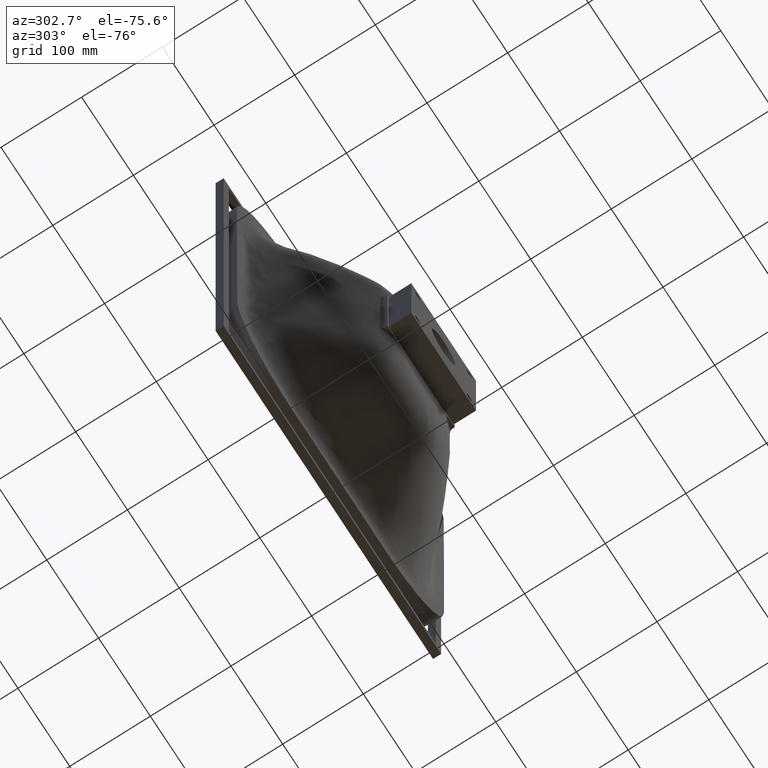
[diagram: clean part render]
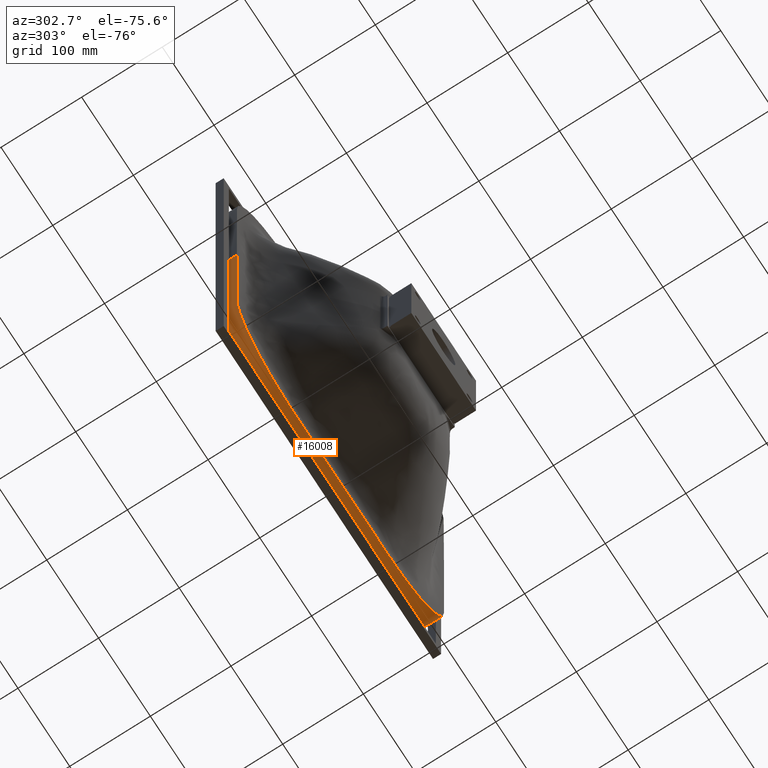
[diagram: same view with one face highlighted and labeled with its STEP entity id]
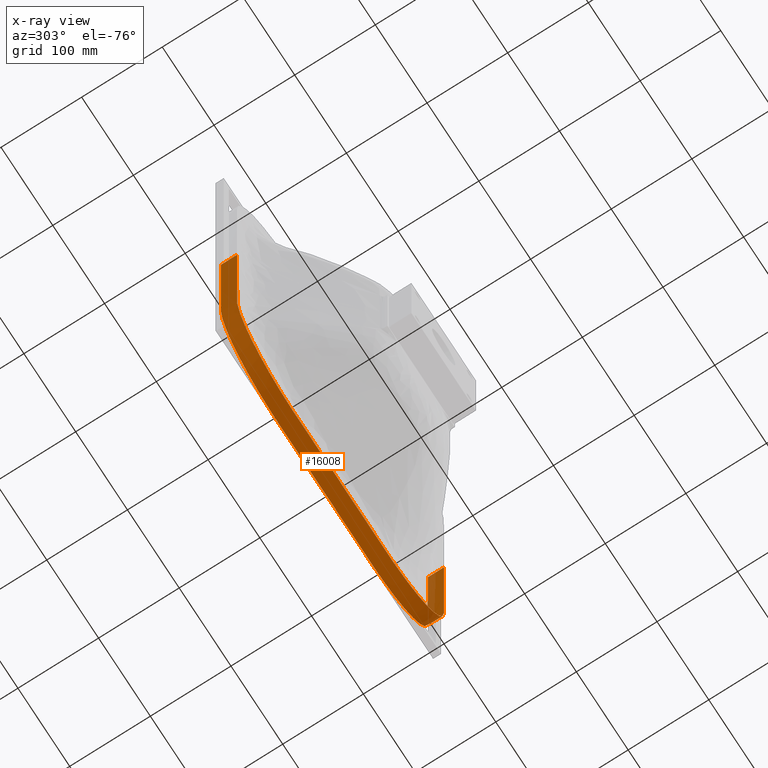
[diagram: x-ray of the same camera — body ghosted, the highlighted face saturated]
A machine part, auxiliary view. The second image highlights one B-rep face of the part: STEP entity #16008.
The next image is the same camera in x-ray: the body ghosted, the highlighted face saturated — about 3% of this face is hidden behind the body in this view.
In plain terms, the highlighted face is a freeform B-spline surface patch.
Its self-contained STEP definition (entity closure, byte-faithful):
#162 = FACE_OUTER_BOUND ( 'NONE', #3801, .T. ) ;
#210 = CARTESIAN_POINT ( 'NONE',  ( -168.6923294650226200, 106.6666666666666700, 268.6923294650225100 ) ) ;
#236 = CARTESIAN_POINT ( 'NONE',  ( -9.179578393710605000E-014, 106.6666666666666400, 300.0000000000000600 ) ) ;
#270 = CARTESIAN_POINT ( 'NONE',  ( -22.24110135107356700, 106.6666666666666700, 300.0000000000001100 ) ) ;
#316 = CARTESIAN_POINT ( 'NONE',  ( 76.98436227798839600, 120.0000000000000000, -299.9999999999999400 ) ) ;
#332 = EDGE_CURVE ( 'NONE', #11120, #3936, #3323, .T. ) ;
#521 = ORIENTED_EDGE ( 'NONE', *, *, #17592, .F. ) ;
#590 = CARTESIAN_POINT ( 'NONE',  ( 198.8080864718465100, 120.0000000000000100, -208.5657858098239800 ) ) ;
#598 = CARTESIAN_POINT ( 'NONE',  ( -200.0000000000000600, 120.0000000000000000, -2.168404344971008900E-015 ) ) ;
#981 = CARTESIAN_POINT ( 'NONE',  ( -186.6589759895212000, 120.0000000000000600, -245.1906514458042100 ) ) ;
#984 = CARTESIAN_POINT ( 'NONE',  ( -200.0000000000000600, 120.0000000000000000, 3.166666666666653600 ) ) ;
#1179 = CARTESIAN_POINT ( 'NONE',  ( -121.1660790566503000, 100.0000000000000000, -296.8106721460860100 ) ) ;
#1189 = CARTESIAN_POINT ( 'NONE',  ( 83.49218113899503600, 120.0000000000000000, 299.9999999999999400 ) ) ;
#1633 = CARTESIAN_POINT ( 'NONE',  ( 65.93767346658849200, 106.6666666666665600, -299.9999999999999400 ) ) ;
#1654 = CARTESIAN_POINT ( 'NONE',  ( 121.1660790566504200, 113.3333333333333000, -296.8106721460858400 ) ) ;
#1661 = CARTESIAN_POINT ( 'NONE',  ( -22.24110135107363500, 113.3333333333333600, -300.0000000000000600 ) ) ;
#1692 = CARTESIAN_POINT ( 'NONE',  ( 147.3414267532380100, 113.3333333333333000, -285.0147497671382600 ) ) ;
#1717 = CARTESIAN_POINT ( 'NONE',  ( 102.0471619301133300, 113.3333333333333000, -300.0000000000002300 ) ) ;
#1723 = CARTESIAN_POINT ( 'NONE',  ( 168.6923294650226200, 113.3333333333332900, -268.6923294650224500 ) ) ;
#1985 = CARTESIAN_POINT ( 'NONE',  ( 76.98436227798839600, 99.99999999999998600, -299.9999999999999400 ) ) ;
#1999 = CARTESIAN_POINT ( 'NONE',  ( 83.49218113899425500, 99.99999999999998600, -300.0000000000000000 ) ) ;
#2480 = CARTESIAN_POINT ( 'NONE',  ( 59.12631834089928900, 99.99999999999994300, -299.9999999999999400 ) ) ;
#2515 = CARTESIAN_POINT ( 'NONE',  ( 147.3414267532380100, 100.0000000000000000, -285.0147497671382600 ) ) ;
#2532 = CARTESIAN_POINT ( 'NONE',  ( -168.6923294650226000, 99.99999999999997200, -268.6923294650223400 ) ) ;
#2644 = CARTESIAN_POINT ( 'NONE',  ( 102.0471619301133300, 120.0000000000000000, -300.0000000000002300 ) ) ;
#2738 = CARTESIAN_POINT ( 'NONE',  ( -147.3414267532379300, 100.0000000000000000, -285.0147497671384300 ) ) ;
#2755 = CARTESIAN_POINT ( 'NONE',  ( -52.31496321521039800, 99.99999999999998600, -300.0000000000000600 ) ) ;
#2805 = CARTESIAN_POINT ( 'NONE',  ( 22.24110135107326500, 99.99999999999997200, -299.9999999999999400 ) ) ;
#2826 = CARTESIAN_POINT ( 'NONE',  ( -1.700029006457271000E-013, 99.99999999999995700, -300.0000000000000600 ) ) ;
#2843 = CARTESIAN_POINT ( 'NONE',  ( -22.24110135107363800, 99.99999999999997200, -300.0000000000000600 ) ) ;
#3172 = CARTESIAN_POINT ( 'NONE',  ( -38.92192736437874600, 100.0000000000000300, -300.0000000000000600 ) ) ;
#3323 = B_SPLINE_CURVE_WITH_KNOTS ( 'NONE', 3,
 ( #4051, #10325, #15819, #6965, #590, #14511, #12241, #11017, #18337, #17442, #2644, #11802, #316, #17510, #9609, #16255, #4629, #8671, #4473, #4292, #15934, #17556, #17732, #5305, #17771, #6820, #18112, #11322, #17932, #12227, #981, #15091, #4890, #7113, #7938, #10194, #17306, #16482, #14984, #3982, #15811 ),
 .UNSPECIFIED., .F., .F.,
 ( 4, 2, 2, 1, 1, 1, 1, 2, 2, 1, 2, 1, 1, 1, 2, 1, 2, 2, 1, 1, 1, 1, 2, 2, 1, 1, 1, 1, 4 ),
 ( 0.5000000000000013300, 0.6043869025565782300, 0.6197851551098251300, 0.6364424591954523900, 0.6524702375148895300, 0.6684980158343266600, 0.6806972684971689400, 0.7005535724732009400, 0.7112798522621431900, 0.7187608823973340400, 0.7225064248481993800, 0.7408354749494002700, 0.7500000000000006700, 0.7591645250506013900, 0.7774935751518024000, 0.7812391176026671800, 0.7887201477378598100, 0.7994464275268004000, 0.8193027315028322800, 0.8315019841656745600, 0.8475297624851116900, 0.8635575408045488300, 0.8802148448901778700, 0.8956130974434231000, 0.9791226194886846200, 0.9843419646165134700, 0.9895613097443423100, 0.9947806548721711600, 1.000000000000000000 ),
 .UNSPECIFIED. ) ;
#3452 = CARTESIAN_POINT ( 'NONE',  ( -186.6589759895212000, 99.99999999999994300, -245.1906514458042100 ) ) ;
#3801 = EDGE_LOOP ( 'NONE', ( #14987, #521, #13712, #11401 ) ) ;
#3867 = B_SPLINE_CURVE_WITH_KNOTS ( 'NONE', 3,
 ( #7453, #7399, #7395, #7376 ),
 .UNSPECIFIED., .F., .F.,
 ( 4, 4 ),
 ( 0.0000000000000000000, 1.000000000000000000 ),
 .UNSPECIFIED. ) ;
#3936 = VERTEX_POINT ( 'NONE', #18211 ) ;
#3982 = CARTESIAN_POINT ( 'NONE',  ( -200.0000000000000600, 120.0000000000000000, -3.166666666666658100 ) ) ;
#4051 = CARTESIAN_POINT ( 'NONE',  ( 200.0000000000021300, 120.0000000000007400, 9.159339953157541500E-013 ) ) ;
#4193 = CARTESIAN_POINT ( 'NONE',  ( 52.31496321521019200, 120.0000000000000000, 300.0000000000000600 ) ) ;
#4210 = CARTESIAN_POINT ( 'NONE',  ( 59.12631834090001300, 119.9999999999999900, 300.0000000000000600 ) ) ;
#4254 = CARTESIAN_POINT ( 'NONE',  ( 168.6923294650225400, 119.9999999999999600, 268.6923294650225700 ) ) ;
#4292 = CARTESIAN_POINT ( 'NONE',  ( -22.24110135107363800, 120.0000000000000600, -300.0000000000000600 ) ) ;
#4319 = CARTESIAN_POINT ( 'NONE',  ( 38.92192736437854700, 119.9999999999999900, 300.0000000000000600 ) ) ;
#4333 = CARTESIAN_POINT ( 'NONE',  ( 194.0399032443960400, 120.0000000000000000, -227.0779828008025200 ) ) ;
#4380 = CARTESIAN_POINT ( 'NONE',  ( 186.6589759895207100, 120.0000000000000300, -245.1906514458049700 ) ) ;
#4451 = CARTESIAN_POINT ( 'NONE',  ( 199.9999999999998900, 120.0000000000001700, -199.3423852784316400 ) ) ;
#4473 = CARTESIAN_POINT ( 'NONE',  ( -1.700029006457271000E-013, 120.0000000000000000, -300.0000000000000600 ) ) ;
#4548 = CARTESIAN_POINT ( 'NONE',  ( 198.8080864718465100, 120.0000000000000100, -208.5657858098239800 ) ) ;
#4629 = CARTESIAN_POINT ( 'NONE',  ( 38.92192736437832700, 119.9999999999999700, -299.9999999999999400 ) ) ;
#4721 = CARTESIAN_POINT ( 'NONE',  ( 200.0000000000028400, 120.0000000000009900, 1.582067810090848100E-012 ) ) ;
#4754 = CARTESIAN_POINT ( 'NONE',  ( 200.0000000000014500, 119.9999999999987200, -126.6666666666664300 ) ) ;
#4785 = CARTESIAN_POINT ( 'NONE',  ( 199.9999999999999700, 119.9999999999996600, 199.3423852784301000 ) ) ;
#4793 = CARTESIAN_POINT ( 'NONE',  ( -83.49218113899517800, 100.0000000000000000, -300.0000000000000000 ) ) ;
#4885 = CARTESIAN_POINT ( 'NONE',  ( 200.0000000000015300, 120.0000000000022700, 126.6666666666678700 ) ) ;
#4890 = CARTESIAN_POINT ( 'NONE',  ( -198.8080864718467400, 120.0000000000000300, -208.5657858098221000 ) ) ;
#4916 = CARTESIAN_POINT ( 'NONE',  ( 194.0399032443970100, 120.0000000000000300, 227.0779828008003000 ) ) ;
#4937 = CARTESIAN_POINT ( 'NONE',  ( 198.8080864718468200, 119.9999999999999700, 208.5657858098214800 ) ) ;
#4942 = CARTESIAN_POINT ( 'NONE',  ( 65.93767346658849200, 99.99999999999997200, -299.9999999999999400 ) ) ;
#4951 = CARTESIAN_POINT ( 'NONE',  ( 121.1660790566504200, 120.0000000000000100, -296.8106721460858400 ) ) ;
#5002 = CARTESIAN_POINT ( 'NONE',  ( 186.6589759895216500, 120.0000000000000300, 245.1906514458040400 ) ) ;
#5011 = CARTESIAN_POINT ( 'NONE',  ( 168.6923294650226200, 120.0000000000000000, -268.6923294650224500 ) ) ;
#5054 = CARTESIAN_POINT ( 'NONE',  ( 147.3414267532380100, 120.0000000000000000, -285.0147497671382600 ) ) ;
#5112 = CARTESIAN_POINT ( 'NONE',  ( 83.49218113899425500, 120.0000000000000000, -300.0000000000000000 ) ) ;
#5121 = CARTESIAN_POINT ( 'NONE',  ( 76.98436227798839600, 120.0000000000000000, -299.9999999999999400 ) ) ;
#5178 = CARTESIAN_POINT ( 'NONE',  ( 65.93767346658977100, 120.0000000000000300, 300.0000000000000600 ) ) ;
#5305 = CARTESIAN_POINT ( 'NONE',  ( -65.93767346659031100, 120.0000000000000300, -300.0000000000000000 ) ) ;
#5322 = CARTESIAN_POINT ( 'NONE',  ( 38.92192736437832700, 99.99999999999997200, -299.9999999999999400 ) ) ;
#5455 = CARTESIAN_POINT ( 'NONE',  ( -102.0471619301131900, 120.0000000000000300, 300.0000000000000600 ) ) ;
#5463 = CARTESIAN_POINT ( 'NONE',  ( -83.49218113899517800, 100.0000000000000000, -300.0000000000000000 ) ) ;
#5472 = CARTESIAN_POINT ( 'NONE',  ( 22.24110135107341400, 119.9999999999999600, 300.0000000000000600 ) ) ;
#5484 = CARTESIAN_POINT ( 'NONE',  ( -102.0471619301131500, 99.99999999999998600, -300.0000000000001100 ) ) ;
#5526 = CARTESIAN_POINT ( 'NONE',  ( -194.0399032443967000, 99.99999999999998600, -227.0779828008007500 ) ) ;
#5545 = CARTESIAN_POINT ( 'NONE',  ( -121.1660790566503000, 100.0000000000000000, -296.8106721460860100 ) ) ;
#5571 = CARTESIAN_POINT ( 'NONE',  ( -59.12631834090034700, 99.99999999999994300, -300.0000000000000600 ) ) ;
#5621 = CARTESIAN_POINT ( 'NONE',  ( -102.0471619301131500, 99.99999999999998600, -300.0000000000001100 ) ) ;
#5718 = CARTESIAN_POINT ( 'NONE',  ( 121.1660790566502900, 120.0000000000000300, 296.8106721460861200 ) ) ;
#5734 = CARTESIAN_POINT ( 'NONE',  ( 147.3414267532379800, 120.0000000000000300, 285.0147497671384800 ) ) ;
#5786 = CARTESIAN_POINT ( 'NONE',  ( 102.0471619301133300, 120.0000000000000000, -300.0000000000002300 ) ) ;
#5806 = CARTESIAN_POINT ( 'NONE',  ( -52.31496321521045400, 120.0000000000000000, 300.0000000000001700 ) ) ;
#5818 = CARTESIAN_POINT ( 'NONE',  ( -76.98436227799030000, 99.99999999999994300, -299.9999999999998300 ) ) ;
#5842 = CARTESIAN_POINT ( 'NONE',  ( -65.93767346659031100, 99.99999999999998600, -300.0000000000000000 ) ) ;
#5859 = CARTESIAN_POINT ( 'NONE',  ( -38.92192736437865400, 120.0000000000000400, 300.0000000000002300 ) ) ;
#5874 = CARTESIAN_POINT ( 'NONE',  ( -59.12631834090007000, 120.0000000000000100, 300.0000000000002300 ) ) ;
#5951 = CARTESIAN_POINT ( 'NONE',  ( 199.9999999999998900, 99.99999999999987200, -199.3423852784316400 ) ) ;
#5991 = CARTESIAN_POINT ( 'NONE',  ( -76.98436227798954700, 120.0000000000000300, 300.0000000000000600 ) ) ;
#6009 = CARTESIAN_POINT ( 'NONE',  ( -65.93767346658972900, 120.0000000000000000, 300.0000000000000600 ) ) ;
#6170 = CARTESIAN_POINT ( 'NONE',  ( -22.24110135107354600, 120.0000000000000700, 300.0000000000001100 ) ) ;
#6200 = CARTESIAN_POINT ( 'NONE',  ( -6.808789643208967800E-014, 120.0000000000000000, 300.0000000000000600 ) ) ;
#6216 = CARTESIAN_POINT ( 'NONE',  ( -198.8080864718467400, 100.0000000000000000, -208.5657858098221000 ) ) ;
#6231 = CARTESIAN_POINT ( 'NONE',  ( 102.0471619301131200, 120.0000000000000000, 300.0000000000000600 ) ) ;
#6293 = CARTESIAN_POINT ( 'NONE',  ( 168.6923294650226200, 99.99999999999997200, -268.6923294650224500 ) ) ;
#6314 = CARTESIAN_POINT ( 'NONE',  ( -83.49218113899480900, 119.9999999999999900, 300.0000000000000600 ) ) ;
#6446 = CARTESIAN_POINT ( 'NONE',  ( 76.98436227798986000, 120.0000000000000100, 300.0000000000000600 ) ) ;
#6485 = CARTESIAN_POINT ( 'NONE',  ( -200.0000000000000300, 113.3333333333333000, 9.499999999999966200 ) ) ;
#6537 = CARTESIAN_POINT ( 'NONE',  ( -200.0000000000000600, 120.0000000000000000, -3.166666666666658100 ) ) ;
#6550 = CARTESIAN_POINT ( 'NONE',  ( -200.0000000000000000, 113.3333333333333000, 18.99999999999999600 ) ) ;
#6820 = CARTESIAN_POINT ( 'NONE',  ( -83.49218113899517800, 119.9999999999999900, -300.0000000000000000 ) ) ;
#6965 = CARTESIAN_POINT ( 'NONE',  ( 199.9999999999998900, 120.0000000000001700, -199.3423852784316400 ) ) ;
#7022 = CARTESIAN_POINT ( 'NONE',  ( -200.0000000000000900, 113.3333333333333300, -9.499999999999964500 ) ) ;
#7099 = CARTESIAN_POINT ( 'NONE',  ( -200.0000000000000600, 106.6666666666666400, -6.722053469410127500E-015 ) ) ;
#7113 = CARTESIAN_POINT ( 'NONE',  ( -200.0000000000001100, 119.9999999999999900, -199.3423852784306400 ) ) ;
#7124 = CARTESIAN_POINT ( 'NONE',  ( -186.6589759895212000, 113.3333333333333100, -245.1906514458042100 ) ) ;
#7159 = CARTESIAN_POINT ( 'NONE',  ( -199.9999999999998300, 106.6666666666666600, 85.50000000000009900 ) ) ;
#7188 = CARTESIAN_POINT ( 'NONE',  ( 168.6923294650225400, 113.3333333333332900, 268.6923294650226200 ) ) ;
#7196 = CARTESIAN_POINT ( 'NONE',  ( -200.0000000000000600, 120.0000000000000400, -9.499999999999969800 ) ) ;
#7228 = CARTESIAN_POINT ( 'NONE',  ( -200.0000000000000600, 106.6666666666666600, 199.3423852784305600 ) ) ;
#7247 = CARTESIAN_POINT ( 'NONE',  ( -186.6589759895213100, 106.6666666666667000, 245.1906514458041500 ) ) ;
#7271 = CARTESIAN_POINT ( 'NONE',  ( -200.0000000000000900, 113.3333333333333000, -3.166666666666652800 ) ) ;
#7305 = CARTESIAN_POINT ( 'NONE',  ( -199.9999999999998900, 106.6666666666666300, 139.3333333333334600 ) ) ;
#7306 = CARTESIAN_POINT ( 'NONE',  ( -168.6923294650226000, 119.9999999999999600, -268.6923294650223400 ) ) ;
#7318 = CARTESIAN_POINT ( 'NONE',  ( -200.0000000000000300, 113.3333333333333000, 3.166666666666658100 ) ) ;
#7343 = CARTESIAN_POINT ( 'NONE',  ( -200.0000000000000600, 106.6666666666666600, 3.166666666666648300 ) ) ;
#7365 = CARTESIAN_POINT ( 'NONE',  ( 121.1660790566502900, 113.3333333333333600, 296.8106721460861800 ) ) ;
#7366 = CARTESIAN_POINT ( 'NONE',  ( -200.0000000000000600, 113.3333333333333000, 2.385244779468109800E-015 ) ) ;
#7376 = CARTESIAN_POINT ( 'NONE',  ( 200.0000000000021300, 120.0000000000007400, 9.159339953157541500E-013 ) ) ;
#7390 = CARTESIAN_POINT ( 'NONE',  ( 102.0471619301131500, 113.3333333333333100, 300.0000000000001100 ) ) ;
#7395 = CARTESIAN_POINT ( 'NONE',  ( 200.0000000000021300, 113.3333333333341700, 9.228728892196613700E-013 ) ) ;
#7399 = CARTESIAN_POINT ( 'NONE',  ( 200.0000000000021600, 106.6666666666676100, 9.089951014118469200E-013 ) ) ;
#7407 = CARTESIAN_POINT ( 'NONE',  ( -198.8080864718466800, 106.6666666666666400, 208.5657858098219600 ) ) ;
#7423 = CARTESIAN_POINT ( 'NONE',  ( -194.0399032443968400, 106.6666666666666300, 227.0779828008008100 ) ) ;
#7424 = CARTESIAN_POINT ( 'NONE',  ( -200.0000000000001100, 120.0000000000001000, 139.3333333333332000 ) ) ;
#7453 = CARTESIAN_POINT ( 'NONE',  ( 200.0000000000021300, 100.0000000000010700, 9.159339953157541500E-013 ) ) ;
#7486 = CARTESIAN_POINT ( 'NONE',  ( 186.6589759895216500, 113.3333333333333600, 245.1906514458040600 ) ) ;
#7530 = CARTESIAN_POINT ( 'NONE',  ( 186.6589759895207100, 100.0000000000000900, -245.1906514458049700 ) ) ;
#7544 = CARTESIAN_POINT ( 'NONE',  ( -200.0000000000000600, 120.0000000000000000, -2.168404344971008900E-015 ) ) ;
#7549 = CARTESIAN_POINT ( 'NONE',  ( 168.6923294650225400, 106.6666666666666300, 268.6923294650225100 ) ) ;
#7625 = CARTESIAN_POINT ( 'NONE',  ( -200.0000000000000600, 113.3333333333333000, 2.385244779468109800E-015 ) ) ;
#7637 = CARTESIAN_POINT ( 'NONE',  ( -199.9999999999998900, 120.0000000000000900, 85.50000000000001400 ) ) ;
#7640 = CARTESIAN_POINT ( 'NONE',  ( -76.98436227799030000, 106.6666666666665700, -299.9999999999998300 ) ) ;
#7683 = CARTESIAN_POINT ( 'NONE',  ( -7.560503149465584700E-014, 113.3333333333333400, 300.0000000000000600 ) ) ;
#7794 = CARTESIAN_POINT ( 'NONE',  ( -121.1660790566503600, 119.9999999999999900, 296.8106721460860100 ) ) ;
#7804 = CARTESIAN_POINT ( 'NONE',  ( -200.0000000000000600, 120.0000000000001400, -85.49999999999987200 ) ) ;
#7831 = CARTESIAN_POINT ( 'NONE',  ( -200.0000000000000000, 106.6666666666666600, 18.99999999999999300 ) ) ;
#7849 = CARTESIAN_POINT ( 'NONE',  ( -200.0000000000000300, 106.6666666666666400, 9.499999999999957400 ) ) ;
#7859 = CARTESIAN_POINT ( 'NONE',  ( 200.0000000000021300, 120.0000000000007400, 9.159339953157541500E-013 ) ) ;
#7863 = CARTESIAN_POINT ( 'NONE',  ( -200.0000000000000000, 120.0000000000000400, 28.50000000000001100 ) ) ;
#7886 = CARTESIAN_POINT ( 'NONE',  ( 147.3414267532379800, 113.3333333333333400, 285.0147497671385400 ) ) ;
#7887 = CARTESIAN_POINT ( 'NONE',  ( 52.31496321521012800, 106.6666666666665700, -299.9999999999999400 ) ) ;
#7908 = CARTESIAN_POINT ( 'NONE',  ( -199.9999999999998600, 113.3333333333333300, 85.50000000000005700 ) ) ;
#7914 = CARTESIAN_POINT ( 'NONE',  ( -83.49218113899517800, 106.6666666666666100, -300.0000000000000000 ) ) ;
#7938 = CARTESIAN_POINT ( 'NONE',  ( -200.0000000000001400, 120.0000000000000900, -139.3333333333331400 ) ) ;
#7959 = CARTESIAN_POINT ( 'NONE',  ( -200.0000000000000300, 120.0000000000000700, -28.49999999999990100 ) ) ;
#7963 = CARTESIAN_POINT ( 'NONE',  ( 199.9999999999999400, 113.3333333333330400, 199.3423852784301300 ) ) ;
#7993 = CARTESIAN_POINT ( 'NONE',  ( 200.0000000000015300, 113.3333333333350600, 126.6666666666678900 ) ) ;
#7998 = CARTESIAN_POINT ( 'NONE',  ( -59.12631834090035500, 106.6666666666665600, -300.0000000000000600 ) ) ;
#8014 = CARTESIAN_POINT ( 'NONE',  ( -121.1660790566503000, 106.6666666666666100, -296.8106721460860100 ) ) ;
#8015 = CARTESIAN_POINT ( 'NONE',  ( -200.0000000000001400, 120.0000000000000900, -139.3333333333331400 ) ) ;
#8047 = CARTESIAN_POINT ( 'NONE',  ( 198.8080864718468200, 113.3333333333332900, 208.5657858098215300 ) ) ;
#8052 = CARTESIAN_POINT ( 'NONE',  ( -52.31496321521040500, 106.6666666666666100, -300.0000000000000600 ) ) ;
#8073 = CARTESIAN_POINT ( 'NONE',  ( 194.0399032443970100, 113.3333333333333000, 227.0779828008003600 ) ) ;
#8080 = CARTESIAN_POINT ( 'NONE',  ( -200.0000000000000300, 120.0000000000000400, -18.99999999999993600 ) ) ;
#8102 = CARTESIAN_POINT ( 'NONE',  ( -38.92192736437875300, 106.6666666666666400, -300.0000000000000600 ) ) ;
#8125 = CARTESIAN_POINT ( 'NONE',  ( 200.0000000000028100, 113.3333333333344500, 1.593632633264026900E-012 ) ) ;
#8130 = CARTESIAN_POINT ( 'NONE',  ( 194.0399032443960400, 113.3333333333333000, -227.0779828008025200 ) ) ;
#8166 = CARTESIAN_POINT ( 'NONE',  ( 102.0471619301133300, 106.6666666666666000, -300.0000000000002300 ) ) ;
#8187 = CARTESIAN_POINT ( 'NONE',  ( 200.0000000000014500, 113.3333333333326700, -126.6666666666664300 ) ) ;
#8188 = CARTESIAN_POINT ( 'NONE',  ( -200.0000000000002600, 99.99999999999997200, -28.49999999999989300 ) ) ;
#8225 = CARTESIAN_POINT ( 'NONE',  ( 121.1660790566504200, 106.6666666666665900, -296.8106721460858400 ) ) ;
#8274 = CARTESIAN_POINT ( 'NONE',  ( 199.9999999999998900, 113.3333333333333900, -199.3423852784316400 ) ) ;
#8291 = CARTESIAN_POINT ( 'NONE',  ( 147.3414267532380100, 106.6666666666666100, -285.0147497671382600 ) ) ;
#8313 = CARTESIAN_POINT ( 'NONE',  ( 194.0399032443970100, 106.6666666666666100, 227.0779828008002400 ) ) ;
#8321 = CARTESIAN_POINT ( 'NONE',  ( 198.8080864718465100, 113.3333333333333100, -208.5657858098239800 ) ) ;
#8358 = CARTESIAN_POINT ( 'NONE',  ( 168.6923294650226200, 106.6666666666665900, -268.6923294650224500 ) ) ;
#8363 = CARTESIAN_POINT ( 'NONE',  ( -168.6923294650226000, 106.6666666666665900, -268.6923294650223400 ) ) ;
#8385 = CARTESIAN_POINT ( 'NONE',  ( 83.49218113899425500, 106.6666666666665900, -300.0000000000000000 ) ) ;
#8410 = CARTESIAN_POINT ( 'NONE',  ( -147.3414267532379300, 106.6666666666666100, -285.0147497671384300 ) ) ;
#8488 = CARTESIAN_POINT ( 'NONE',  ( 186.6589759895207100, 106.6666666666666900, -245.1906514458049700 ) ) ;
#8493 = CARTESIAN_POINT ( 'NONE',  ( 200.0000000000014500, 106.6666666666666700, -126.6666666666664300 ) ) ;
#8541 = CARTESIAN_POINT ( 'NONE',  ( 200.0000000000028700, 106.6666666666679400, 1.570502986917669600E-012 ) ) ;
#8580 = CARTESIAN_POINT ( 'NONE',  ( 194.0399032443960400, 106.6666666666665900, -227.0779828008025200 ) ) ;
#8585 = CARTESIAN_POINT ( 'NONE',  ( 200.0000000000015300, 106.6666666666678800, 126.6666666666678400 ) ) ;
#8629 = CARTESIAN_POINT ( 'NONE',  ( 198.8080864718465100, 106.6666666666666100, -208.5657858098239800 ) ) ;
#8652 = CARTESIAN_POINT ( 'NONE',  ( 199.9999999999998900, 106.6666666666665900, -199.3423852784316400 ) ) ;
#8655 = CARTESIAN_POINT ( 'NONE',  ( 200.0000000000000000, 106.6666666666664700, 199.3423852784300700 ) ) ;
#8671 = CARTESIAN_POINT ( 'NONE',  ( 22.24110135107326500, 119.9999999999999300, -299.9999999999999400 ) ) ;
#8682 = CARTESIAN_POINT ( 'NONE',  ( -194.0399032443967300, 106.6666666666666000, -227.0779828008007500 ) ) ;
#8701 = CARTESIAN_POINT ( 'NONE',  ( 38.92192736437832700, 106.6666666666665700, -299.9999999999999400 ) ) ;
#8718 = CARTESIAN_POINT ( 'NONE',  ( 83.49218113899503600, 106.6666666666666400, 299.9999999999998900 ) ) ;
#8726 = CARTESIAN_POINT ( 'NONE',  ( 186.6589759895216500, 106.6666666666666900, 245.1906514458040100 ) ) ;
#8766 = CARTESIAN_POINT ( 'NONE',  ( 147.3414267532379800, 106.6666666666666400, 285.0147497671384300 ) ) ;
#8795 = CARTESIAN_POINT ( 'NONE',  ( 65.93767346658977100, 106.6666666666666100, 300.0000000000000000 ) ) ;
#8821 = CARTESIAN_POINT ( 'NONE',  ( 76.98436227798986000, 106.6666666666666400, 300.0000000000000000 ) ) ;
#8841 = CARTESIAN_POINT ( 'NONE',  ( 102.0471619301131600, 106.6666666666665900, 300.0000000000000000 ) ) ;
#8856 = CARTESIAN_POINT ( 'NONE',  ( 121.1660790566503000, 106.6666666666666400, 296.8106721460860600 ) ) ;
#8857 = CARTESIAN_POINT ( 'NONE',  ( -1.700029006457271000E-013, 120.0000000000000000, -300.0000000000000600 ) ) ;
#8899 = VERTEX_POINT ( 'NONE', #12855 ) ;
#8925 = CARTESIAN_POINT ( 'NONE',  ( 38.92192736437854700, 106.6666666666666100, 300.0000000000000600 ) ) ;
#8943 = CARTESIAN_POINT ( 'NONE',  ( 194.0399032443960400, 99.99999999999995700, -227.0779828008025200 ) ) ;
#8984 = CARTESIAN_POINT ( 'NONE',  ( 22.24110135107340000, 106.6666666666666000, 300.0000000000000600 ) ) ;
#8985 = CARTESIAN_POINT ( 'NONE',  ( 22.24110135107341400, 113.3333333333333100, 300.0000000000000600 ) ) ;
#8989 = CARTESIAN_POINT ( 'NONE',  ( 52.31496321521019200, 106.6666666666666400, 300.0000000000000600 ) ) ;
#9046 = CARTESIAN_POINT ( 'NONE',  ( 198.8080864718468200, 106.6666666666666400, 208.5657858098214500 ) ) ;
#9050 = CARTESIAN_POINT ( 'NONE',  ( 59.12631834090001300, 106.6666666666666300, 300.0000000000000000 ) ) ;
#9146 = CARTESIAN_POINT ( 'NONE',  ( -1.700029006457271000E-013, 106.6666666666665700, -300.0000000000000600 ) ) ;
#9168 = CARTESIAN_POINT ( 'NONE',  ( -186.6589759895212000, 106.6666666666666000, -245.1906514458042100 ) ) ;
#9173 = CARTESIAN_POINT ( 'NONE',  ( 22.24110135107326500, 106.6666666666665600, -299.9999999999999400 ) ) ;
#9196 = CARTESIAN_POINT ( 'NONE',  ( -22.24110135107364200, 106.6666666666666000, -300.0000000000000600 ) ) ;
#9210 = CARTESIAN_POINT ( 'NONE',  ( -147.3414267532380700, 106.6666666666666600, 285.0147497671383100 ) ) ;
#9229 = CARTESIAN_POINT ( 'NONE',  ( -59.12631834090012700, 106.6666666666666700, 300.0000000000001700 ) ) ;
#9253 = CARTESIAN_POINT ( 'NONE',  ( -76.98436227798960400, 106.6666666666666600, 300.0000000000001100 ) ) ;
#9284 = CARTESIAN_POINT ( 'NONE',  ( -52.31496321521048300, 106.6666666666666600, 300.0000000000001100 ) ) ;
#9286 = CARTESIAN_POINT ( 'NONE',  ( -121.1660790566504000, 106.6666666666666400, 296.8106721460860600 ) ) ;
#9306 = CARTESIAN_POINT ( 'NONE',  ( -102.0471619301132600, 106.6666666666666400, 300.0000000000002800 ) ) ;
#9311 = CARTESIAN_POINT ( 'NONE',  ( -65.93767346658974300, 106.6666666666666400, 300.0000000000000000 ) ) ;
#9339 = CARTESIAN_POINT ( 'NONE',  ( -83.49218113899489400, 106.6666666666666300, 300.0000000000000000 ) ) ;
#9340 = CARTESIAN_POINT ( 'NONE',  ( -38.92192736437867500, 106.6666666666666400, 300.0000000000001700 ) ) ;
#9410 = CARTESIAN_POINT ( 'NONE',  ( 59.12631834089928900, 106.6666666666665400, -299.9999999999999400 ) ) ;
#9412 = CARTESIAN_POINT ( 'NONE',  ( -200.0000000000000000, 120.0000000000000000, 9.499999999999962700 ) ) ;
#9475 = CARTESIAN_POINT ( 'NONE',  ( -168.6923294650226200, 120.0000000000000400, 268.6923294650226200 ) ) ;
#9485 = CARTESIAN_POINT ( 'NONE',  ( 102.0471619301133300, 100.0000000000000000, -300.0000000000002300 ) ) ;
#9530 = CARTESIAN_POINT ( 'NONE',  ( -76.98436227799030000, 99.99999999999994300, -299.9999999999998300 ) ) ;
#9606 = CARTESIAN_POINT ( 'NONE',  ( -194.0399032443967500, 119.9999999999999900, 227.0779828008007500 ) ) ;
#9609 = CARTESIAN_POINT ( 'NONE',  ( 59.12631834089928900, 119.9999999999999900, -299.9999999999999400 ) ) ;
#9839 = CARTESIAN_POINT ( 'NONE',  ( -147.3414267532379500, 120.0000000000000000, 285.0147497671382600 ) ) ;
#9898 = CARTESIAN_POINT ( 'NONE',  ( -198.8080864718466500, 120.0000000000000000, 208.5657858098221600 ) ) ;
#10003 = CARTESIAN_POINT ( 'NONE',  ( -186.6589759895210800, 120.0000000000000000, 245.1906514458042100 ) ) ;
#10118 = CARTESIAN_POINT ( 'NONE',  ( -200.0000000000000000, 119.9999999999999900, 199.3423852784306700 ) ) ;
#10194 = CARTESIAN_POINT ( 'NONE',  ( -200.0000000000000600, 120.0000000000001400, -85.49999999999987200 ) ) ;
#10307 = CARTESIAN_POINT ( 'NONE',  ( -200.0000000000000600, 120.0000000000000000, -2.168404344971008900E-015 ) ) ;
#10325 = CARTESIAN_POINT ( 'NONE',  ( 200.0000000000021600, 119.9999999999998600, -63.33333333333417400 ) ) ;
#10544 = CARTESIAN_POINT ( 'NONE',  ( -200.0000000000000000, 120.0000000000000100, 18.99999999999998900 ) ) ;
#10575 = CARTESIAN_POINT ( 'NONE',  ( -199.9999999999999700, 113.3333333333333300, 28.50000000000002500 ) ) ;
#10612 = CARTESIAN_POINT ( 'NONE',  ( -194.0399032443967800, 113.3333333333333100, 227.0779828008007800 ) ) ;
#10655 = CARTESIAN_POINT ( 'NONE',  ( -200.0000000000000000, 113.3333333333333300, 139.3333333333333100 ) ) ;
#10663 = CARTESIAN_POINT ( 'NONE',  ( -147.3414267532379300, 100.0000000000000000, -285.0147497671384300 ) ) ;
#10834 = CARTESIAN_POINT ( 'NONE',  ( -200.0000000000000300, 113.3333333333333300, 199.3423852784306100 ) ) ;
#10867 = CARTESIAN_POINT ( 'NONE',  ( -168.6923294650226000, 99.99999999999997200, -268.6923294650223400 ) ) ;
#11017 = CARTESIAN_POINT ( 'NONE',  ( 168.6923294650226200, 120.0000000000000000, -268.6923294650224500 ) ) ;
#11120 = VERTEX_POINT ( 'NONE', #7859 ) ;
#11322 = CARTESIAN_POINT ( 'NONE',  ( -121.1660790566503000, 119.9999999999999700, -296.8106721460860100 ) ) ;
#11331 = EDGE_CURVE ( 'NONE', #11774, #11120, #3867, .T. ) ;
#11401 = ORIENTED_EDGE ( 'NONE', *, *, #332, .F. ) ;
#11764 = CARTESIAN_POINT ( 'NONE',  ( 121.1660790566504200, 99.99999999999995700, -296.8106721460858400 ) ) ;
#11774 = VERTEX_POINT ( 'NONE', #12982 ) ;
#11802 = CARTESIAN_POINT ( 'NONE',  ( 83.49218113899425500, 120.0000000000000000, -300.0000000000000000 ) ) ;
#11828 = CARTESIAN_POINT ( 'NONE',  ( 52.31496321521012800, 99.99999999999997200, -299.9999999999999400 ) ) ;
#11888 = CARTESIAN_POINT ( 'NONE',  ( -198.8080864718466800, 113.3333333333333100, 208.5657858098220700 ) ) ;
#12120 = CARTESIAN_POINT ( 'NONE',  ( 186.6589759895207100, 113.3333333333333600, -245.1906514458049700 ) ) ;
#12123 = CARTESIAN_POINT ( 'NONE',  ( 200.0000000000015300, 100.0000000000007200, 126.6666666666678700 ) ) ;
#12162 = CARTESIAN_POINT ( 'NONE',  ( 65.93767346658849200, 119.9999999999999700, -299.9999999999999400 ) ) ;
#12190 = CARTESIAN_POINT ( 'NONE',  ( 200.0000000000014500, 100.0000000000007000, -126.6666666666664300 ) ) ;
#12191 = CARTESIAN_POINT ( 'NONE',  ( 168.6923294650225400, 100.0000000000000000, 268.6923294650225700 ) ) ;
#12217 = CARTESIAN_POINT ( 'NONE',  ( 200.0000000000028400, 100.0000000000014200, 1.582067810090848100E-012 ) ) ;
#12227 = CARTESIAN_POINT ( 'NONE',  ( -168.6923294650226000, 119.9999999999999600, -268.6923294650223400 ) ) ;
#12241 = CARTESIAN_POINT ( 'NONE',  ( 186.6589759895207100, 120.0000000000000300, -245.1906514458049700 ) ) ;
#12248 = CARTESIAN_POINT ( 'NONE',  ( 198.8080864718468200, 99.99999999999998600, 208.5657858098214800 ) ) ;
#12249 = CARTESIAN_POINT ( 'NONE',  ( -22.24110135107363800, 99.99999999999997200, -300.0000000000000600 ) ) ;
#12269 = CARTESIAN_POINT ( 'NONE',  ( 186.6589759895207100, 100.0000000000000900, -245.1906514458049700 ) ) ;
#12273 = CARTESIAN_POINT ( 'NONE',  ( 147.3414267532379800, 100.0000000000000000, 285.0147497671384800 ) ) ;
#12289 = CARTESIAN_POINT ( 'NONE',  ( -186.6589759895212000, 99.99999999999994300, -245.1906514458042100 ) ) ;
#12305 = CARTESIAN_POINT ( 'NONE',  ( 194.0399032443960400, 99.99999999999995700, -227.0779828008025200 ) ) ;
#12306 = CARTESIAN_POINT ( 'NONE',  ( -1.700029006457271000E-013, 99.99999999999995700, -300.0000000000000600 ) ) ;
#12327 = CARTESIAN_POINT ( 'NONE',  ( 194.0399032443970100, 99.99999999999992900, 227.0779828008003000 ) ) ;
#12331 = CARTESIAN_POINT ( 'NONE',  ( -59.12631834090034700, 99.99999999999994300, -300.0000000000000600 ) ) ;
#12366 = CARTESIAN_POINT ( 'NONE',  ( 102.0471619301133300, 100.0000000000000000, -300.0000000000002300 ) ) ;
#12388 = CARTESIAN_POINT ( 'NONE',  ( 22.24110135107326500, 99.99999999999997200, -299.9999999999999400 ) ) ;
#12395 = CARTESIAN_POINT ( 'NONE',  ( 59.12631834089928900, 99.99999999999994300, -299.9999999999999400 ) ) ;
#12415 = CARTESIAN_POINT ( 'NONE',  ( 83.49218113899425500, 99.99999999999998600, -300.0000000000000000 ) ) ;
#12436 = CARTESIAN_POINT ( 'NONE',  ( 199.9999999999999700, 99.99999999999990100, 199.3423852784301000 ) ) ;
#12580 = CARTESIAN_POINT ( 'NONE',  ( -194.0399032443967000, 119.9999999999999400, -227.0779828008007500 ) ) ;
#12598 = CARTESIAN_POINT ( 'NONE',  ( -198.8080864718467400, 120.0000000000000300, -208.5657858098221000 ) ) ;
#12611 = CARTESIAN_POINT ( 'NONE',  ( 121.1660790566504200, 99.99999999999995700, -296.8106721460858400 ) ) ;
#12625 = CARTESIAN_POINT ( 'NONE',  ( 102.0471619301131800, 99.99999999999994300, 300.0000000000000600 ) ) ;
#12652 = CARTESIAN_POINT ( 'NONE',  ( 52.31496321521012800, 99.99999999999997200, -299.9999999999999400 ) ) ;
#12654 = CARTESIAN_POINT ( 'NONE',  ( -147.3414267532379300, 120.0000000000000000, -285.0147497671384300 ) ) ;
#12659 = CARTESIAN_POINT ( 'NONE',  ( 38.92192736437832700, 99.99999999999997200, -299.9999999999999400 ) ) ;
#12671 = CARTESIAN_POINT ( 'NONE',  ( -22.24110135107363800, 120.0000000000000600, -300.0000000000000600 ) ) ;
#12682 = CARTESIAN_POINT ( 'NONE',  ( -52.31496321521039800, 99.99999999999998600, -300.0000000000000600 ) ) ;
#12699 = CARTESIAN_POINT ( 'NONE',  ( 76.98436227798839600, 99.99999999999998600, -299.9999999999999400 ) ) ;
#12703 = CARTESIAN_POINT ( 'NONE',  ( 147.3414267532380100, 100.0000000000000000, -285.0147497671382600 ) ) ;
#12723 = CARTESIAN_POINT ( 'NONE',  ( 168.6923294650226200, 99.99999999999997200, -268.6923294650224500 ) ) ;
#12728 = CARTESIAN_POINT ( 'NONE',  ( 65.93767346658849200, 99.99999999999997200, -299.9999999999999400 ) ) ;
#12747 = CARTESIAN_POINT ( 'NONE',  ( -38.92192736437874600, 100.0000000000000300, -300.0000000000000600 ) ) ;
#12763 = CARTESIAN_POINT ( 'NONE',  ( 121.1660790566502900, 100.0000000000000000, 296.8106721460861200 ) ) ;
#12767 = CARTESIAN_POINT ( 'NONE',  ( 198.8080864718465100, 99.99999999999998600, -208.5657858098239800 ) ) ;
#12791 = CARTESIAN_POINT ( 'NONE',  ( -65.93767346659031100, 99.99999999999998600, -300.0000000000000000 ) ) ;
#12793 = CARTESIAN_POINT ( 'NONE',  ( -38.92192736437874600, 120.0000000000000000, -300.0000000000000600 ) ) ;
#12800 = CARTESIAN_POINT ( 'NONE',  ( 199.9999999999998900, 99.99999999999987200, -199.3423852784316400 ) ) ;
#12807 = CARTESIAN_POINT ( 'NONE',  ( -200.0000000000000900, 99.99999999999997200, -2.168404344971008900E-015 ) ) ;
#12810 = CARTESIAN_POINT ( 'NONE',  ( -200.0000000000001100, 119.9999999999999900, -199.3423852784306400 ) ) ;
#12834 = CARTESIAN_POINT ( 'NONE',  ( 186.6589759895216500, 100.0000000000000400, 245.1906514458040400 ) ) ;
#12855 = CARTESIAN_POINT ( 'NONE',  ( -200.0000000000000900, 99.99999999999997200, -2.168404344971008900E-015 ) ) ;
#12862 = CARTESIAN_POINT ( 'NONE',  ( -200.0000000000000900, 99.99999999999997200, -2.168404344971008900E-015 ) ) ;
#12863 = CARTESIAN_POINT ( 'NONE',  ( -52.31496321521039800, 120.0000000000000000, -300.0000000000000600 ) ) ;
#12889 = CARTESIAN_POINT ( 'NONE',  ( -22.24110135107357400, 99.99999999999997200, 300.0000000000001100 ) ) ;
#12929 = CARTESIAN_POINT ( 'NONE',  ( -83.49218113899492300, 99.99999999999997200, 300.0000000000000600 ) ) ;
#12930 = CARTESIAN_POINT ( 'NONE',  ( -59.12631834090034700, 119.9999999999999400, -300.0000000000000600 ) ) ;
#12936 = CARTESIAN_POINT ( 'NONE',  ( -102.0471619301131500, 106.6666666666666100, -300.0000000000001100 ) ) ;
#12950 = CARTESIAN_POINT ( 'NONE',  ( -65.93767346659031100, 120.0000000000000300, -300.0000000000000000 ) ) ;
#12962 = CARTESIAN_POINT ( 'NONE',  ( 38.92192736437854700, 99.99999999999997200, 300.0000000000000600 ) ) ;
#12973 = CARTESIAN_POINT ( 'NONE',  ( -76.98436227799030000, 119.9999999999999700, -299.9999999999998300 ) ) ;
#12982 = CARTESIAN_POINT ( 'NONE',  ( 200.0000000000021300, 100.0000000000010700, 9.159339953157541500E-013 ) ) ;
#13006 = CARTESIAN_POINT ( 'NONE',  ( 83.49218113899503600, 100.0000000000000000, 299.9999999999999400 ) ) ;
#13008 = CARTESIAN_POINT ( 'NONE',  ( -83.49218113899517800, 119.9999999999999900, -300.0000000000000000 ) ) ;
#13014 = CARTESIAN_POINT ( 'NONE',  ( 52.31496321521019200, 99.99999999999997200, 300.0000000000000600 ) ) ;
#13037 = CARTESIAN_POINT ( 'NONE',  ( -65.93767346658974300, 99.99999999999997200, 300.0000000000000600 ) ) ;
#13053 = CARTESIAN_POINT ( 'NONE',  ( -199.9999999999999400, 99.99999999999997200, 28.50000000000003600 ) ) ;
#13057 = CARTESIAN_POINT ( 'NONE',  ( -200.0000000000001400, 106.6666666666666600, -9.499999999999971600 ) ) ;
#13073 = EDGE_CURVE ( 'NONE', #8899, #3936, #16655, .T. ) ;
#13079 = CARTESIAN_POINT ( 'NONE',  ( 65.93767346658977100, 99.99999999999995700, 300.0000000000000600 ) ) ;
#13080 = CARTESIAN_POINT ( 'NONE',  ( -102.0471619301131500, 120.0000000000000400, -300.0000000000001100 ) ) ;
#13094 = CARTESIAN_POINT ( 'NONE',  ( -200.0000000000001100, 100.0000000000000000, -199.3423852784306400 ) ) ;
#13145 = CARTESIAN_POINT ( 'NONE',  ( -147.3414267532381000, 100.0000000000000100, 285.0147497671383700 ) ) ;
#13147 = CARTESIAN_POINT ( 'NONE',  ( -102.0471619301132100, 113.3333333333333400, 300.0000000000002300 ) ) ;
#13159 = CARTESIAN_POINT ( 'NONE',  ( -200.0000000000001100, 99.99999999999997200, -3.166666666666656700 ) ) ;
#13163 = CARTESIAN_POINT ( 'NONE',  ( -147.3414267532380100, 113.3333333333333300, 285.0147497671383100 ) ) ;
#13174 = CARTESIAN_POINT ( 'NONE',  ( -200.0000000000000600, 106.6666666666666300, -3.166666666666662100 ) ) ;
#13182 = CARTESIAN_POINT ( 'NONE',  ( -200.0000000000001700, 99.99999999999998600, -9.499999999999966200 ) ) ;
#13193 = CARTESIAN_POINT ( 'NONE',  ( -121.1660790566503000, 113.3333333333332700, -296.8106721460860100 ) ) ;
#13219 = CARTESIAN_POINT ( 'NONE',  ( 76.98436227798839600, 106.6666666666665900, -299.9999999999999400 ) ) ;
#13221 = CARTESIAN_POINT ( 'NONE',  ( -83.49218113899483700, 113.3333333333333300, 300.0000000000001100 ) ) ;
#13225 = CARTESIAN_POINT ( 'NONE',  ( -52.31496321521039800, 113.3333333333332900, -300.0000000000000600 ) ) ;
#13251 = CARTESIAN_POINT ( 'NONE',  ( -59.12631834090034700, 113.3333333333332400, -300.0000000000000600 ) ) ;
#13267 = CARTESIAN_POINT ( 'NONE',  ( -76.98436227798960400, 99.99999999999997200, 300.0000000000002300 ) ) ;
#13270 = CARTESIAN_POINT ( 'NONE',  ( 83.49218113899425500, 113.3333333333332900, -300.0000000000000000 ) ) ;
#13289 = CARTESIAN_POINT ( 'NONE',  ( -200.0000000000000900, 100.0000000000000000, 199.3423852784305000 ) ) ;
#13290 = CARTESIAN_POINT ( 'NONE',  ( 38.92192736437854700, 113.3333333333333300, 300.0000000000000600 ) ) ;
#13317 = CARTESIAN_POINT ( 'NONE',  ( -199.9999999999998000, 99.99999999999990100, 139.3333333333335700 ) ) ;
#13334 = CARTESIAN_POINT ( 'NONE',  ( 59.12631834090001300, 99.99999999999997200, 300.0000000000000600 ) ) ;
#13338 = CARTESIAN_POINT ( 'NONE',  ( -198.8080864718467400, 106.6666666666666300, -208.5657858098221000 ) ) ;
#13362 = CARTESIAN_POINT ( 'NONE',  ( 65.93767346658849200, 113.3333333333332700, -299.9999999999999400 ) ) ;
#13383 = CARTESIAN_POINT ( 'NONE',  ( -200.0000000000003100, 106.6666666666666400, -85.49999999999985800 ) ) ;
#13398 = CARTESIAN_POINT ( 'NONE',  ( -52.31496321521049000, 99.99999999999997200, 300.0000000000001700 ) ) ;
#13420 = CARTESIAN_POINT ( 'NONE',  ( -200.0000000000001400, 106.6666666666665700, -139.3333333333331400 ) ) ;
#13422 = CARTESIAN_POINT ( 'NONE',  ( 76.98436227798986000, 113.3333333333333600, 300.0000000000001100 ) ) ;
#13426 = CARTESIAN_POINT ( 'NONE',  ( -168.6923294650226000, 113.3333333333332600, -268.6923294650223400 ) ) ;
#13459 = CARTESIAN_POINT ( 'NONE',  ( -76.98436227798954700, 113.3333333333333600, 300.0000000000001700 ) ) ;
#13491 = CARTESIAN_POINT ( 'NONE',  ( -65.93767346658972900, 113.3333333333333400, 300.0000000000001100 ) ) ;
#13515 = CARTESIAN_POINT ( 'NONE',  ( -200.0000000000001100, 106.6666666666666300, -199.3423852784306400 ) ) ;
#13530 = CARTESIAN_POINT ( 'NONE',  ( -59.12631834090008500, 113.3333333333333600, 300.0000000000002800 ) ) ;
#13534 = CARTESIAN_POINT ( 'NONE',  ( 52.31496321521012800, 113.3333333333332600, -299.9999999999999400 ) ) ;
#13556 = CARTESIAN_POINT ( 'NONE',  ( -200.0000000000000000, 99.99999999999997200, 19.00000000000000000 ) ) ;
#13561 = CARTESIAN_POINT ( 'NONE',  ( 76.98436227798986000, 100.0000000000000000, 300.0000000000000600 ) ) ;
#13578 = CARTESIAN_POINT ( 'NONE',  ( -52.31496321521046200, 113.3333333333333300, 300.0000000000002300 ) ) ;
#13582 = CARTESIAN_POINT ( 'NONE',  ( -59.12631834090014100, 100.0000000000000000, 300.0000000000002300 ) ) ;
#13595 = CARTESIAN_POINT ( 'NONE',  ( 38.92192736437832700, 113.3333333333332600, -299.9999999999999400 ) ) ;
#13625 = CARTESIAN_POINT ( 'NONE',  ( -200.0000000000000600, 99.99999999999997200, 9.499999999999960900 ) ) ;
#13647 = CARTESIAN_POINT ( 'NONE',  ( -200.0000000000000600, 99.99999999999997200, 3.166666666666652300 ) ) ;
#13661 = CARTESIAN_POINT ( 'NONE',  ( -65.93767346659032600, 106.6666666666666100, -300.0000000000000000 ) ) ;
#13682 = CARTESIAN_POINT ( 'NONE',  ( 59.12631834089928900, 113.3333333333332600, -299.9999999999999400 ) ) ;
#13684 = CARTESIAN_POINT ( 'NONE',  ( -186.6589759895214200, 100.0000000000000700, 245.1906514458040900 ) ) ;
#13706 = CARTESIAN_POINT ( 'NONE',  ( -38.92192736437866100, 113.3333333333333700, 300.0000000000002800 ) ) ;
#13710 = CARTESIAN_POINT ( 'NONE',  ( -199.9999999999998000, 99.99999999999992900, 85.50000000000014200 ) ) ;
#13712 = ORIENTED_EDGE ( 'NONE', *, *, #13073, .T. ) ;
#13741 = CARTESIAN_POINT ( 'NONE',  ( -200.0000000000002000, 106.6666666666666600, -28.49999999999990100 ) ) ;
#13764 = CARTESIAN_POINT ( 'NONE',  ( 76.98436227798839600, 113.3333333333332900, -299.9999999999999400 ) ) ;
#13775 = CARTESIAN_POINT ( 'NONE',  ( -22.24110135107355300, 113.3333333333334000, 300.0000000000001100 ) ) ;
#13797 = CARTESIAN_POINT ( 'NONE',  ( -38.92192736437868200, 99.99999999999994300, 300.0000000000002300 ) ) ;
#13815 = CARTESIAN_POINT ( 'NONE',  ( -168.6923294650226000, 100.0000000000000000, 268.6923294650224500 ) ) ;
#13820 = CARTESIAN_POINT ( 'NONE',  ( -121.1660790566504000, 99.99999999999998600, 296.8106721460861200 ) ) ;
#13855 = CARTESIAN_POINT ( 'NONE',  ( -102.0471619301131500, 113.3333333333333000, -300.0000000000001100 ) ) ;
#13856 = CARTESIAN_POINT ( 'NONE',  ( -102.0471619301132800, 99.99999999999997200, 300.0000000000004500 ) ) ;
#13876 = CARTESIAN_POINT ( 'NONE',  ( 22.24110135107339700, 99.99999999999994300, 300.0000000000000600 ) ) ;
#13913 = CARTESIAN_POINT ( 'NONE',  ( -38.92192736437874600, 113.3333333333333300, -300.0000000000000600 ) ) ;
#13914 = CARTESIAN_POINT ( 'NONE',  ( -200.0000000000000900, 113.3333333333333600, -28.49999999999989300 ) ) ;
#13934 = CARTESIAN_POINT ( 'NONE',  ( -200.0000000000000900, 113.3333333333333300, -18.99999999999992900 ) ) ;
#13938 = CARTESIAN_POINT ( 'NONE',  ( -83.49218113899517800, 113.3333333333333000, -300.0000000000000000 ) ) ;
#13957 = CARTESIAN_POINT ( 'NONE',  ( -200.0000000000001700, 113.3333333333334000, -85.49999999999985800 ) ) ;
#13991 = CARTESIAN_POINT ( 'NONE',  ( 83.49218113899503600, 113.3333333333333400, 300.0000000000000000 ) ) ;
#13996 = CARTESIAN_POINT ( 'NONE',  ( -9.931291899967220600E-014, 99.99999999999997200, 300.0000000000000600 ) ) ;
#14030 = CARTESIAN_POINT ( 'NONE',  ( -76.98436227799030000, 113.3333333333332700, -299.9999999999998300 ) ) ;
#14034 = CARTESIAN_POINT ( 'NONE',  ( -200.0000000000001400, 106.6666666666666400, -18.99999999999993600 ) ) ;
#14053 = CARTESIAN_POINT ( 'NONE',  ( -65.93767346659029700, 113.3333333333333100, -300.0000000000000000 ) ) ;
#14079 = CARTESIAN_POINT ( 'NONE',  ( -1.700029006457271000E-013, 113.3333333333333100, -300.0000000000000600 ) ) ;
#14090 = CARTESIAN_POINT ( 'NONE',  ( -200.0000000000001100, 113.3333333333333000, -199.3423852784306400 ) ) ;
#14093 = CARTESIAN_POINT ( 'NONE',  ( -200.0000000000000600, 106.6666666666666400, -6.722053469410127500E-015 ) ) ;
#14111 = CARTESIAN_POINT ( 'NONE',  ( -198.8080864718467100, 99.99999999999997200, 208.5657858098218800 ) ) ;
#14140 = CARTESIAN_POINT ( 'NONE',  ( -194.0399032443966700, 113.3333333333332600, -227.0779828008007500 ) ) ;
#14155 = CARTESIAN_POINT ( 'NONE',  ( 22.24110135107326500, 113.3333333333332400, -299.9999999999999400 ) ) ;
#14160 = CARTESIAN_POINT ( 'NONE',  ( -194.0399032443968700, 99.99999999999997200, 227.0779828008008400 ) ) ;
#14195 = CARTESIAN_POINT ( 'NONE',  ( -147.3414267532379300, 113.3333333333333000, -285.0147497671384300 ) ) ;
#14221 = CARTESIAN_POINT ( 'NONE',  ( -194.0399032443967000, 99.99999999999998600, -227.0779828008007500 ) ) ;
#14233 = CARTESIAN_POINT ( 'NONE',  ( -200.0000000000001400, 113.3333333333333300, -139.3333333333331400 ) ) ;
#14361 = CARTESIAN_POINT ( 'NONE',  ( -198.8080864718467400, 113.3333333333333300, -208.5657858098221000 ) ) ;
#14364 = B_SPLINE_SURFACE_WITH_KNOTS ( 'NONE', 3, 3, ( 
 ( #12807, #13159, #13182, #17511, #17893, #17933, #17993, #18009, #18048, #14221, #3452, #10867, #10663, #1179, #5484, #4793, #9530, #12791, #12331, #12682, #12747, #12249, #12306, #12388, #12659, #12652, #12395, #12728, #12699, #12415, #12366, #12611, #12703, #12723, #12269, #12305, #12767, #12800, #12190, #12217, #12123, #12436, #12248, #12327, #12834, #12191, #12273, #12763, #12625, #13006, #13561, #13079, #13334, #13014, #12962, #13876, #13996, #12889, #13797, #13398, #13582, #13037, #13267, #12929, #13856, #13820, #13145, #13815, #13684, #14160, #14111, #13289, #13317, #13710, #13053, #13556, #13625, #13647, #12862 ),
 ( #14093, #13174, #13057, #14034, #13741, #13383, #13420, #13515, #13338, #8682, #9168, #8363, #8410, #8014, #12936, #7914, #7640, #13661, #7998, #8052, #8102, #9196, #9146, #9173, #8701, #7887, #9410, #1633, #13219, #8385, #8166, #8225, #8291, #8358, #8488, #8580, #8629, #8652, #8493, #8541, #8585, #8655, #9046, #8313, #8726, #7549, #8766, #8856, #8841, #8718, #8821, #8795, #9050, #8989, #8925, #8984, #236, #270, #9340, #9284, #9229, #9311, #9253, #9339, #9306, #9286, #9210, #210, #7247, #7423, #7407, #7228, #7305, #7159, #14389, #7831, #7849, #7343, #7099 ),
 ( #7625, #7271, #7022, #13934, #13914, #13957, #14233, #14090, #14361, #14140, #7124, #13426, #14195, #13193, #13855, #13938, #14030, #14053, #13251, #13225, #13913, #1661, #14079, #14155, #13595, #13534, #13682, #13362, #13764, #13270, #1717, #1654, #1692, #1723, #12120, #8130, #8321, #8274, #8187, #8125, #7993, #7963, #8047, #8073, #7486, #7188, #7886, #7365, #7390, #13991, #13422, #16366, #15659, #15370, #13290, #8985, #7683, #13775, #13706, #13578, #13530, #13491, #13459, #13221, #13147, #15977, #13163, #15027, #15210, #10612, #11888, #10834, #10655, #7908, #10575, #6550, #6485, #7318, #7366 ),
 ( #7544, #6537, #7196, #8080, #7959, #7804, #8015, #12810, #12598, #12580, #15326, #7306, #12654, #14594, #13080, #13008, #12973, #12950, #12930, #12863, #12793, #12671, #8857, #14455, #14539, #14719, #14795, #12162, #5121, #5112, #5786, #4951, #5054, #5011, #4380, #4333, #4548, #4451, #4754, #4721, #4885, #4785, #4937, #4916, #5002, #4254, #5734, #5718, #6231, #1189, #6446, #5178, #4210, #4193, #4319, #5472, #6200, #6170, #5859, #5806, #5874, #6009, #5991, #6314, #5455, #7794, #9839, #9475, #10003, #9606, #9898, #10118, #7424, #7637, #7863, #10544, #9412, #984, #598 ) ),
 .UNSPECIFIED., .F., .T., .F.,
 ( 4, 4 ),
 ( 4, 1, 1, 1, 1, 2, 2, 1, 1, 1, 1, 2, 2, 1, 2, 1, 1, 1, 2, 1, 2, 2, 1, 1, 1, 1, 2, 2, 1, 2, 2, 1, 1, 1, 1, 2, 2, 1, 2, 1, 1, 1, 2, 1, 2, 2, 1, 1, 1, 1, 2, 2, 1, 1, 1, 1, 4 ),
 ( 0.0000000000000000000, 1.000000000000000000 ),
 ( 0.0000000000000000000, 0.005219345127828845000, 0.01043869025565769000, 0.01565803538348653500, 0.02087738051131538000, 0.1043869025565771800, 0.1197851551098224900, 0.1364424591954515000, 0.1524702375148886400, 0.1684980158343258300, 0.1806972684971681600, 0.2005535724732001000, 0.2112798522621407400, 0.2187608823973333800, 0.2225064248481982400, 0.2408354749493993000, 0.2500000000000000000, 0.2591645250506003900, 0.2774935751518014000, 0.2812391176026666800, 0.2887201477378576500, 0.2994464275267999000, 0.3193027315028319500, 0.3315019841656742200, 0.3475297624851113600, 0.3635575408045485500, 0.3802148448901759300, 0.3956130974434228200, 0.5000000000000000000, 0.6043869025565775700, 0.6197851551098223500, 0.6364424591954516200, 0.6524702375148887500, 0.6684980158343258900, 0.6806972684971683800, 0.7005535724732001600, 0.7112798522621411900, 0.7187608823973336000, 0.7225064248481983800, 0.7408354749493995000, 0.7500000000000000000, 0.7591645250506005000, 0.7774935751518016200, 0.7812391176026667300, 0.7887201477378585900, 0.7994464275267998400, 0.8193027315028319500, 0.8315019841656741100, 0.8475297624851112500, 0.8635575408045483800, 0.8802148448901774300, 0.8956130974434226600, 0.9791226194886845100, 0.9843419646165133500, 0.9895613097443423100, 0.9947806548721711600, 1.000000000000000000 ),
 .UNSPECIFIED. ) ;
#14389 = CARTESIAN_POINT ( 'NONE',  ( -199.9999999999999700, 106.6666666666666600, 28.50000000000002100 ) ) ;
#14453 = CARTESIAN_POINT ( 'NONE',  ( -200.0000000000000600, 106.6666666666666400, -6.722053469410127500E-015 ) ) ;
#14455 = CARTESIAN_POINT ( 'NONE',  ( 22.24110135107326500, 119.9999999999999300, -299.9999999999999400 ) ) ;
#14511 = CARTESIAN_POINT ( 'NONE',  ( 194.0399032443960400, 120.0000000000000000, -227.0779828008025200 ) ) ;
#14539 = CARTESIAN_POINT ( 'NONE',  ( 38.92192736437832700, 119.9999999999999700, -299.9999999999999400 ) ) ;
#14594 = CARTESIAN_POINT ( 'NONE',  ( -121.1660790566503000, 119.9999999999999700, -296.8106721460860100 ) ) ;
#14719 = CARTESIAN_POINT ( 'NONE',  ( 52.31496321521012800, 119.9999999999999700, -299.9999999999999400 ) ) ;
#14795 = CARTESIAN_POINT ( 'NONE',  ( 59.12631834089928900, 119.9999999999999900, -299.9999999999999400 ) ) ;
#14963 = CARTESIAN_POINT ( 'NONE',  ( -200.0000000000001700, 99.99999999999998600, -9.499999999999966200 ) ) ;
#14984 = CARTESIAN_POINT ( 'NONE',  ( -200.0000000000000600, 120.0000000000000400, -9.499999999999969800 ) ) ;
#14987 = ORIENTED_EDGE ( 'NONE', *, *, #11331, .F. ) ;
#14994 = CARTESIAN_POINT ( 'NONE',  ( -200.0000000000001100, 99.99999999999997200, -3.166666666666656700 ) ) ;
#15018 = CARTESIAN_POINT ( 'NONE',  ( 198.8080864718465100, 99.99999999999998600, -208.5657858098239800 ) ) ;
#15027 = CARTESIAN_POINT ( 'NONE',  ( -168.6923294650226000, 113.3333333333333600, 268.6923294650225700 ) ) ;
#15051 = CARTESIAN_POINT ( 'NONE',  ( -200.0000000000002000, 99.99999999999997200, -18.99999999999992900 ) ) ;
#15091 = CARTESIAN_POINT ( 'NONE',  ( -194.0399032443967000, 119.9999999999999400, -227.0779828008007500 ) ) ;
#15115 = CARTESIAN_POINT ( 'NONE',  ( -200.0000000000000600, 113.3333333333333000, 2.385244779468109800E-015 ) ) ;
#15138 = CARTESIAN_POINT ( 'NONE',  ( 200.0000000000021300, 100.0000000000010700, 9.159339953157541500E-013 ) ) ;
#15142 = CARTESIAN_POINT ( 'NONE',  ( 200.0000000000021600, 100.0000000000010700, -63.33333333333408900 ) ) ;
#15210 = CARTESIAN_POINT ( 'NONE',  ( -186.6589759895212000, 113.3333333333333600, 245.1906514458041800 ) ) ;
#15326 = CARTESIAN_POINT ( 'NONE',  ( -186.6589759895212000, 120.0000000000000600, -245.1906514458042100 ) ) ;
#15370 = CARTESIAN_POINT ( 'NONE',  ( 52.31496321521019200, 113.3333333333333400, 300.0000000000000600 ) ) ;
#15659 = CARTESIAN_POINT ( 'NONE',  ( 59.12631834090001300, 113.3333333333333300, 300.0000000000001100 ) ) ;
#15811 = CARTESIAN_POINT ( 'NONE',  ( -200.0000000000000600, 120.0000000000000000, -2.168404344971008900E-015 ) ) ;
#15819 = CARTESIAN_POINT ( 'NONE',  ( 200.0000000000014500, 119.9999999999987200, -126.6666666666672300 ) ) ;
#15934 = CARTESIAN_POINT ( 'NONE',  ( -38.92192736437874600, 120.0000000000000000, -300.0000000000000600 ) ) ;
#15977 = CARTESIAN_POINT ( 'NONE',  ( -121.1660790566503600, 113.3333333333333100, 296.8106721460860600 ) ) ;
#16008 = ADVANCED_FACE ( 'NONE', ( #162 ), #14364, .T. ) ;
#16255 = CARTESIAN_POINT ( 'NONE',  ( 52.31496321521012800, 119.9999999999999700, -299.9999999999999400 ) ) ;
#16366 = CARTESIAN_POINT ( 'NONE',  ( 65.93767346658977100, 113.3333333333333600, 300.0000000000001100 ) ) ;
#16482 = CARTESIAN_POINT ( 'NONE',  ( -200.0000000000000300, 120.0000000000000400, -18.99999999999993600 ) ) ;
#16583 = CARTESIAN_POINT ( 'NONE',  ( -200.0000000000001400, 99.99999999999990100, -139.3333333333331400 ) ) ;
#16655 = B_SPLINE_CURVE_WITH_KNOTS ( 'NONE', 3,
 ( #17663, #14453, #15115, #10307 ),
 .UNSPECIFIED., .F., .F.,
 ( 4, 4 ),
 ( 0.0000000000000000000, 1.000000000000000000 ),
 .UNSPECIFIED. ) ;
#16740 = CARTESIAN_POINT ( 'NONE',  ( -200.0000000000004300, 99.99999999999994300, -85.49999999999984400 ) ) ;
#16870 = B_SPLINE_CURVE_WITH_KNOTS ( 'NONE', 3,
 ( #17925, #14994, #14963, #15051, #8188, #16740, #16583, #13094, #6216, #5526, #12289, #2532, #2738, #5545, #5621, #5463, #5818, #5842, #5571, #2755, #3172, #2843, #2826, #2805, #5322, #11828, #2480, #4942, #1985, #1999, #9485, #11764, #2515, #6293, #7530, #8943, #15018, #5951, #17340, #15142, #15138 ),
 .UNSPECIFIED., .F., .F.,
 ( 4, 1, 1, 1, 1, 2, 2, 1, 1, 1, 1, 2, 2, 1, 2, 1, 1, 1, 2, 1, 2, 2, 1, 1, 1, 1, 2, 2, 4 ),
 ( 0.0000000000000000000, 0.005219345127828832000, 0.01043869025565766400, 0.01565803538348649300, 0.02087738051131532800, 0.1043869025565769100, 0.1197851551098221800, 0.1364424591954511400, 0.1524702375148882500, 0.1684980158343253900, 0.1806972684971676900, 0.2005535724731996000, 0.2112798522621402200, 0.2187608823973328200, 0.2225064248481976900, 0.2408354749493986900, 0.2499999999999993600, 0.2591645250505997300, 0.2774935751518006800, 0.2812391176026659600, 0.2887201477378569200, 0.2994464275267991200, 0.3193027315028311200, 0.3315019841656733900, 0.3475297624851104700, 0.3635575408045476100, 0.3802148448901749900, 0.3956130974434218200, 0.4999999999999987200 ),
 .UNSPECIFIED. ) ;
#17306 = CARTESIAN_POINT ( 'NONE',  ( -200.0000000000000300, 120.0000000000000700, -28.49999999999990100 ) ) ;
#17340 = CARTESIAN_POINT ( 'NONE',  ( 200.0000000000014500, 100.0000000000007000, -126.6666666666672100 ) ) ;
#17442 = CARTESIAN_POINT ( 'NONE',  ( 121.1660790566504200, 120.0000000000000100, -296.8106721460858400 ) ) ;
#17510 = CARTESIAN_POINT ( 'NONE',  ( 65.93767346658849200, 119.9999999999999700, -299.9999999999999400 ) ) ;
#17511 = CARTESIAN_POINT ( 'NONE',  ( -200.0000000000002000, 99.99999999999997200, -18.99999999999992900 ) ) ;
#17556 = CARTESIAN_POINT ( 'NONE',  ( -52.31496321521039800, 120.0000000000000000, -300.0000000000000600 ) ) ;
#17592 = EDGE_CURVE ( 'NONE', #8899, #11774, #16870, .T. ) ;
#17663 = CARTESIAN_POINT ( 'NONE',  ( -200.0000000000000900, 99.99999999999997200, -2.168404344971008900E-015 ) ) ;
#17732 = CARTESIAN_POINT ( 'NONE',  ( -59.12631834090034700, 119.9999999999999400, -300.0000000000000600 ) ) ;
#17771 = CARTESIAN_POINT ( 'NONE',  ( -76.98436227799030000, 119.9999999999999700, -299.9999999999998300 ) ) ;
#17893 = CARTESIAN_POINT ( 'NONE',  ( -200.0000000000002600, 99.99999999999997200, -28.49999999999989300 ) ) ;
#17925 = CARTESIAN_POINT ( 'NONE',  ( -200.0000000000000900, 99.99999999999997200, -2.168404344971008900E-015 ) ) ;
#17932 = CARTESIAN_POINT ( 'NONE',  ( -147.3414267532379300, 120.0000000000000000, -285.0147497671384300 ) ) ;
#17933 = CARTESIAN_POINT ( 'NONE',  ( -200.0000000000004300, 99.99999999999994300, -85.49999999999984400 ) ) ;
#17993 = CARTESIAN_POINT ( 'NONE',  ( -200.0000000000001400, 99.99999999999990100, -139.3333333333331400 ) ) ;
#18009 = CARTESIAN_POINT ( 'NONE',  ( -200.0000000000001100, 100.0000000000000000, -199.3423852784306400 ) ) ;
#18048 = CARTESIAN_POINT ( 'NONE',  ( -198.8080864718467400, 100.0000000000000000, -208.5657858098221000 ) ) ;
#18112 = CARTESIAN_POINT ( 'NONE',  ( -102.0471619301131500, 120.0000000000000400, -300.0000000000001100 ) ) ;
#18211 = CARTESIAN_POINT ( 'NONE',  ( -200.0000000000000600, 120.0000000000000000, -2.168404344971008900E-015 ) ) ;
#18337 = CARTESIAN_POINT ( 'NONE',  ( 147.3414267532380100, 120.0000000000000000, -285.0147497671382600 ) ) ;